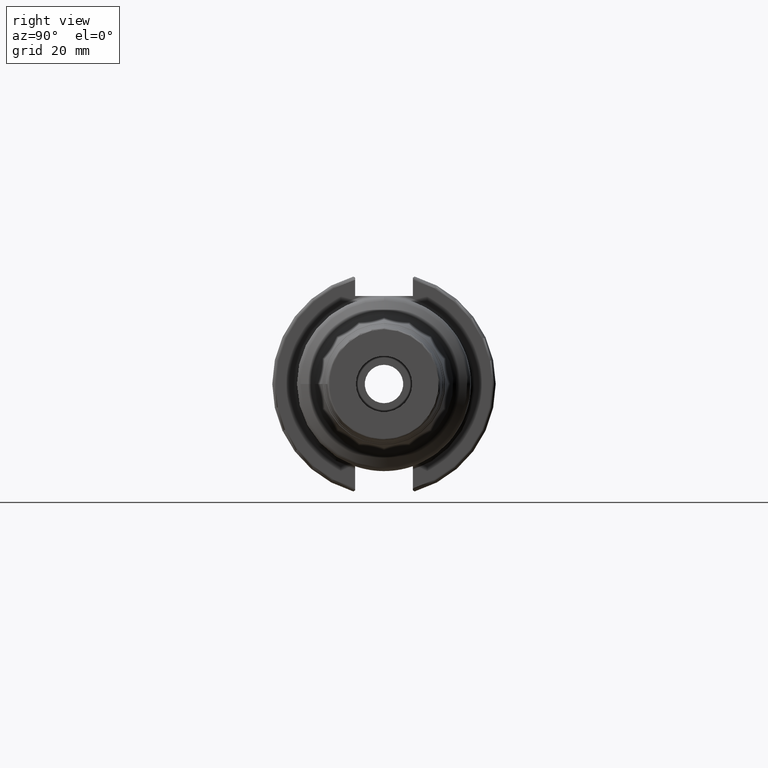
[diagram: clean part render]
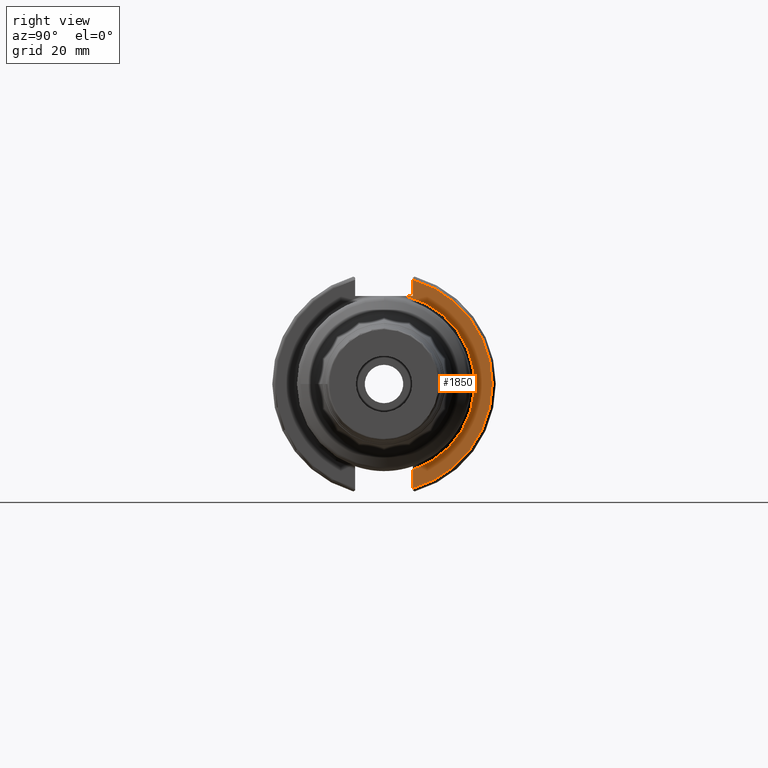
[diagram: same view with one face highlighted and labeled with its STEP entity id]
A machine part, right view. The second image highlights one B-rep face of the part: STEP entity #1850.
In plain terms, the highlighted planar face has unit normal (1, 0, 0).
Its self-contained STEP definition (entity closure, byte-faithful):
#136=PLANE('',#2048);
#188=LINE('',#3108,#281);
#189=LINE('',#3112,#282);
#190=LINE('',#3113,#283);
#281=VECTOR('',#2426,10.);
#282=VECTOR('',#2429,10.);
#283=VECTOR('',#2430,10.);
#409=FACE_OUTER_BOUND('',#520,.T.);
#520=EDGE_LOOP('',(#1395,#1396,#1397,#1398,#1399));
#653=CIRCLE('',#2016,25.75);
#672=CIRCLE('',#2049,30.75);
#769=VERTEX_POINT('',#2910);
#774=VERTEX_POINT('',#2938);
#798=VERTEX_POINT('',#3107);
#799=VERTEX_POINT('',#3109);
#800=VERTEX_POINT('',#3111);
#985=EDGE_CURVE('',#774,#769,#653,.T.);
#1021=EDGE_CURVE('',#774,#798,#188,.T.);
#1022=EDGE_CURVE('',#799,#798,#672,.T.);
#1023=EDGE_CURVE('',#799,#800,#189,.T.);
#1024=EDGE_CURVE('',#800,#769,#190,.T.);
#1395=ORIENTED_EDGE('',*,*,#985,.F.);
#1396=ORIENTED_EDGE('',*,*,#1021,.T.);
#1397=ORIENTED_EDGE('',*,*,#1022,.F.);
#1398=ORIENTED_EDGE('',*,*,#1023,.T.);
#1399=ORIENTED_EDGE('',*,*,#1024,.T.);
#1850=ADVANCED_FACE('',(#409),#136,.T.);
#2016=AXIS2_PLACEMENT_3D('',#2949,#2348,#2349);
#2048=AXIS2_PLACEMENT_3D('',#3106,#2424,#2425);
#2049=AXIS2_PLACEMENT_3D('',#3110,#2427,#2428);
#2348=DIRECTION('center_axis',(1.,0.,0.));
#2349=DIRECTION('ref_axis',(0.,6.12323399573677E-17,1.));
#2424=DIRECTION('center_axis',(1.,0.,0.));
#2425=DIRECTION('ref_axis',(0.,0.,-1.));
#2426=DIRECTION('',(0.,0.,-1.));
#2427=DIRECTION('center_axis',(-1.,0.,0.));
#2428=DIRECTION('ref_axis',(0.,1.,-6.12323399573677E-17));
#2429=DIRECTION('',(0.,0.,-1.));
#2430=DIRECTION('',(0.,-1.,0.));
#2910=CARTESIAN_POINT('',(19.05,6.16948133962652,25.));
#2938=CARTESIAN_POINT('',(19.05,8.19,-24.4128326910254));
#2949=CARTESIAN_POINT('Origin',(19.05,0.,0.));
#3106=CARTESIAN_POINT('Origin',(19.05,0.,0.));
#3107=CARTESIAN_POINT('',(19.05,8.19,-29.6392712461019));
#3108=CARTESIAN_POINT('',(19.05,8.19,-11.3));
#3109=CARTESIAN_POINT('',(19.05,8.19,29.6392712461019));
#3110=CARTESIAN_POINT('Origin',(19.05,0.,0.));
#3111=CARTESIAN_POINT('',(19.05,8.19,25.));
#3112=CARTESIAN_POINT('',(19.05,8.19,12.5));
#3113=CARTESIAN_POINT('',(19.05,0.,25.));